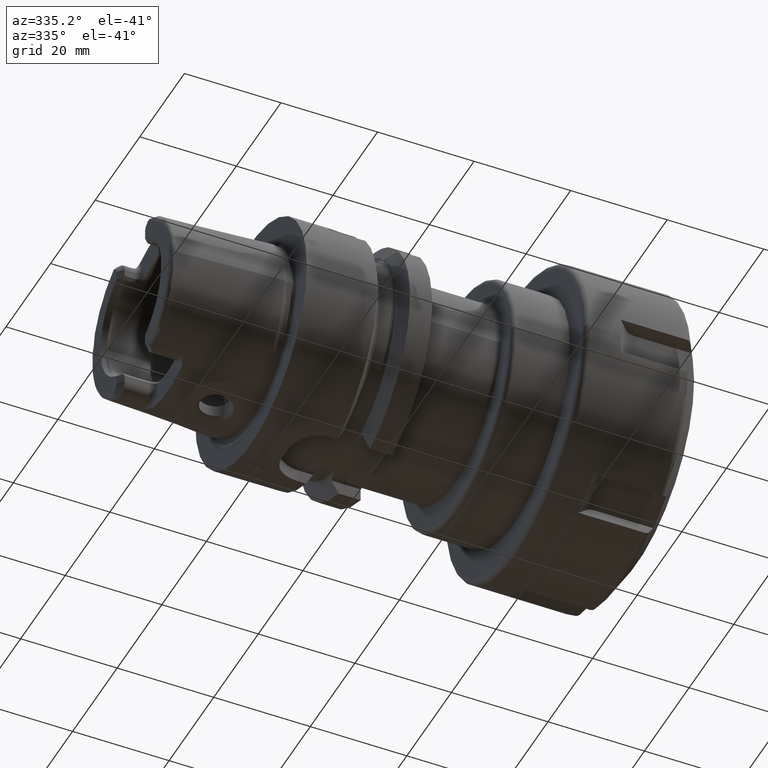
[diagram: clean part render]
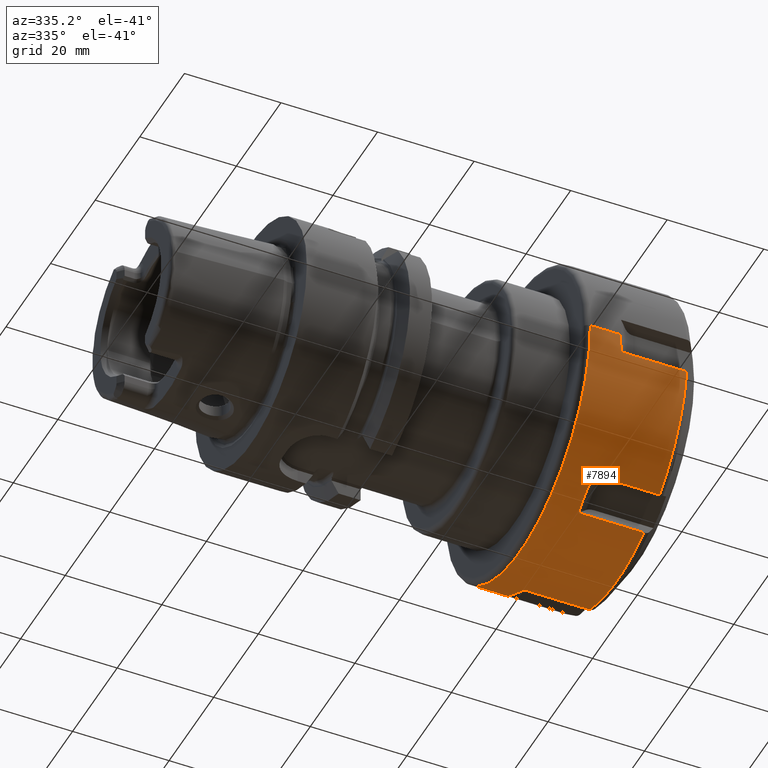
[diagram: same view with one face highlighted and labeled with its STEP entity id]
A machine part, auxiliary view. The second image highlights one B-rep face of the part: STEP entity #7894.
In plain terms, the highlighted cylindrical surface (partial cylindrical patch) has radius 31.5 mm, axis along (1, 0, 0).
Its self-contained STEP definition (entity closure, byte-faithful):
#7038=CARTESIAN_POINT('',(7.741547338395E0,1.218356437536E1,-2.904842094003E1));
#7039=CARTESIAN_POINT('',(7.404800931005E0,1.464571221600E1,-2.801574047936E1));
#7040=CARTESIAN_POINT('',(7.404800931005E0,1.693948685296E1,-2.669142907526E1));
#7041=CARTESIAN_POINT('',(7.741547338395E0,1.906488828622E1,-2.507548672772E1));
#7043=DIRECTION('',(1.E0,0.E0,0.E0));
#7044=VECTOR('',#7043,1.357266321E1);
#7045=CARTESIAN_POINT('',(7.741547338395E0,1.906488828622E1,-2.507548672772E1));
#7046=LINE('',#7045,#7044);
#7047=CARTESIAN_POINT('',(2.131421054840E1,0.E0,0.E0));
#7048=DIRECTION('',(-1.E0,0.E0,0.E0));
#7049=DIRECTION('',(0.E0,9.920143702097E-1,-1.261248956292E-1));
#7050=AXIS2_PLACEMENT_3D('',#7047,#7048,#7049);
#7052=DIRECTION('',(1.E0,0.E0,0.E0));
#7053=VECTOR('',#7052,1.357266321E1);
#7054=CARTESIAN_POINT('',(7.741547338395E0,3.124845266157E1,-3.972934212316E0));
#7055=LINE('',#7054,#7053);
#7056=CARTESIAN_POINT('',(7.5E0,0.E0,0.E0));
#7057=DIRECTION('',(1.E0,0.E0,0.E0));
#7058=DIRECTION('',(0.E0,9.996825396825E-1,-2.519563164260E-2));
#7059=AXIS2_PLACEMENT_3D('',#7056,#7057,#7058);
#7061=DIRECTION('',(-1.E0,0.E0,1.226696553146E-12));
#7062=VECTOR('',#7061,6.25E0);
#7063=CARTESIAN_POINT('',(7.5E0,3.149999999997E1,3.183525763783E-14));
#7064=LINE('',#7063,#7062);
#7065=CARTESIAN_POINT('',(1.25E0,0.E0,0.E0));
#7066=DIRECTION('',(-1.E0,0.E0,0.E0));
#7067=DIRECTION('',(0.E0,1.E0,0.E0));
#7068=AXIS2_PLACEMENT_3D('',#7065,#7066,#7067);
#7070=DIRECTION('',(-1.E0,0.E0,-1.230541309323E-12));
#7071=VECTOR('',#7070,6.25E0);
#7072=CARTESIAN_POINT('',(7.5E0,-3.149999999997E1,0.E0));
#7073=LINE('',#7072,#7071);
#7074=CARTESIAN_POINT('',(7.5E0,0.E0,0.E0));
#7075=DIRECTION('',(1.E0,0.E0,0.E0));
#7076=DIRECTION('',(0.E0,-1.E0,0.E0));
#7077=AXIS2_PLACEMENT_3D('',#7074,#7075,#7076);
#7079=DIRECTION('',(1.E0,0.E0,0.E0));
#7080=VECTOR('',#7079,1.357266321E1);
#7081=CARTESIAN_POINT('',(7.741547338395E0,-3.124845266157E1,
-3.972934212316E0));
#7082=LINE('',#7081,#7080);
#7083=CARTESIAN_POINT('',(2.131421054840E1,0.E0,0.E0));
#7084=DIRECTION('',(-1.E0,0.E0,0.E0));
#7085=DIRECTION('',(0.E0,-6.052345487694E-1,-7.960471977062E-1));
#7086=AXIS2_PLACEMENT_3D('',#7083,#7084,#7085);
#7088=DIRECTION('',(1.E0,0.E0,0.E0));
#7089=VECTOR('',#7088,1.357266321E1);
#7090=CARTESIAN_POINT('',(7.741547338395E0,-1.906488828622E1,
-2.507548672772E1));
#7091=LINE('',#7090,#7089);
#7092=CARTESIAN_POINT('',(7.741547338395E0,-1.906488828622E1,
-2.507548672772E1));
#7093=CARTESIAN_POINT('',(7.404800931005E0,-1.693948685296E1,
-2.669142907526E1));
#7094=CARTESIAN_POINT('',(7.404800931005E0,-1.464571221600E1,
-2.801574047936E1));
#7095=CARTESIAN_POINT('',(7.741547338395E0,-1.218356437536E1,
-2.904842094003E1));
#7097=DIRECTION('',(1.E0,0.E0,0.E0));
#7098=VECTOR('',#7097,1.357266321E1);
#7099=CARTESIAN_POINT('',(7.741547338395E0,-1.218356437536E1,
-2.904842094003E1));
#7100=LINE('',#7099,#7098);
#7101=CARTESIAN_POINT('',(2.131421054840E1,0.E0,0.E0));
#7102=DIRECTION('',(-1.E0,0.E0,0.E0));
#7103=DIRECTION('',(0.E0,3.867798214403E-1,-9.221720933354E-1));
#7104=AXIS2_PLACEMENT_3D('',#7101,#7102,#7103);
#7106=DIRECTION('',(1.E0,0.E0,0.E0));
#7107=VECTOR('',#7106,1.357266321E1);
#7108=CARTESIAN_POINT('',(7.741547338395E0,1.218356437536E1,-2.904842094003E1));
#7109=LINE('',#7108,#7107);
#7176=CARTESIAN_POINT('',(2.131421054840E1,-1.906488828622E1,
-2.507548672772E1));
#7196=CARTESIAN_POINT('',(2.131421054840E1,-3.124845266157E1,
-3.972934212316E0));
#7207=CARTESIAN_POINT('',(2.131421054840E1,1.906488828622E1,-2.507548672772E1));
#7209=CARTESIAN_POINT('',(2.131421054840E1,3.124845266157E1,-3.972934212316E0));
#7220=CARTESIAN_POINT('',(2.131421054840E1,1.218356437536E1,-2.904842094003E1));
#7240=CARTESIAN_POINT('',(2.131421054840E1,-1.218356437536E1,
-2.904842094003E1));
#7374=CARTESIAN_POINT('',(7.741547338395E0,-3.124845266157E1,
-3.972934212316E0));
#7375=CARTESIAN_POINT('',(7.607834703287E0,-3.138216529668E1,
-2.921239740395E0));
#7376=CARTESIAN_POINT('',(7.526914489918E0,-3.146308551005E1,
-1.861543766702E0));
#7377=CARTESIAN_POINT('',(7.5E0,-3.148999999997E1,-7.936623967406E-1));
#7495=CARTESIAN_POINT('',(7.5E0,3.148999999997E1,-7.936623967410E-1));
#7496=CARTESIAN_POINT('',(7.526914489918E0,3.146308551005E1,-1.861543766702E0));
#7497=CARTESIAN_POINT('',(7.607834703287E0,3.138216529668E1,-2.921239740395E0));
#7498=CARTESIAN_POINT('',(7.741547338395E0,3.124845266157E1,-3.972934212316E0));
#7634=CARTESIAN_POINT('',(1.25E0,3.149999999997E1,1.784644752757E-14));
#7635=CARTESIAN_POINT('',(1.25E0,-3.149999999997E1,-2.170408494488E-14));
#7636=VERTEX_POINT('',#7634);
#7637=VERTEX_POINT('',#7635);
#7644=VERTEX_POINT('',#7209);
#7645=CARTESIAN_POINT('',(7.5E0,3.149999999997E1,3.183525763783E-14));
#7646=VERTEX_POINT('',#7645);
#7647=CARTESIAN_POINT('',(7.5E0,3.148999999997E1,-7.936623967409E-1));
#7649=VERTEX_POINT('',#7647);
#7653=CARTESIAN_POINT('',(7.741547338395E0,3.124845266157E1,-3.972934212316E0));
#7654=VERTEX_POINT('',#7653);
#7662=VERTEX_POINT('',#7374);
#7663=VERTEX_POINT('',#7377);
#7699=VERTEX_POINT('',#7196);
#7701=CARTESIAN_POINT('',(7.5E0,-3.149999999997E1,0.E0));
#7702=VERTEX_POINT('',#7701);
#7712=VERTEX_POINT('',#7240);
#7713=VERTEX_POINT('',#7176);
#7714=CARTESIAN_POINT('',(7.741547338395E0,-1.218356437536E1,
-2.904842094003E1));
#7715=VERTEX_POINT('',#7714);
#7716=CARTESIAN_POINT('',(7.741547338395E0,-1.906488828622E1,
-2.507548672772E1));
#7717=VERTEX_POINT('',#7716);
#7727=VERTEX_POINT('',#7207);
#7728=VERTEX_POINT('',#7220);
#7729=CARTESIAN_POINT('',(7.741547338395E0,1.906488828622E1,-2.507548672772E1));
#7730=VERTEX_POINT('',#7729);
#7731=CARTESIAN_POINT('',(7.741547338395E0,1.218356437536E1,-2.904842094003E1));
#7732=VERTEX_POINT('',#7731);
#7854=CARTESIAN_POINT('',(-1.275E0,0.E0,0.E0));
#7855=DIRECTION('',(1.E0,0.E0,0.E0));
#7856=DIRECTION('',(0.E0,-1.E0,0.E0));
#7857=AXIS2_PLACEMENT_3D('',#7854,#7855,#7856);
#7858=CYLINDRICAL_SURFACE('',#7857,3.149999999997E1);
#7859=ORIENTED_EDGE('',*,*,#7848,.T.);
#7860=ORIENTED_EDGE('',*,*,#7801,.T.);
#7862=ORIENTED_EDGE('',*,*,#7861,.F.);
#7864=ORIENTED_EDGE('',*,*,#7863,.F.);
#7866=ORIENTED_EDGE('',*,*,#7865,.F.);
#7868=ORIENTED_EDGE('',*,*,#7867,.T.);
#7870=ORIENTED_EDGE('',*,*,#7869,.T.);
#7872=ORIENTED_EDGE('',*,*,#7871,.T.);
#7874=ORIENTED_EDGE('',*,*,#7873,.F.);
#7876=ORIENTED_EDGE('',*,*,#7875,.T.);
#7878=ORIENTED_EDGE('',*,*,#7877,.F.);
#7880=ORIENTED_EDGE('',*,*,#7879,.T.);
#7882=ORIENTED_EDGE('',*,*,#7881,.F.);
#7884=ORIENTED_EDGE('',*,*,#7883,.F.);
#7886=ORIENTED_EDGE('',*,*,#7885,.T.);
#7888=ORIENTED_EDGE('',*,*,#7887,.T.);
#7890=ORIENTED_EDGE('',*,*,#7889,.F.);
#7891=ORIENTED_EDGE('',*,*,#7831,.F.);
#7892=EDGE_LOOP('',(#7859,#7860,#7862,#7864,#7866,#7868,#7870,#7872,#7874,#7876,
#7878,#7880,#7882,#7884,#7886,#7888,#7890,#7891));
#7893=FACE_OUTER_BOUND('',#7892,.F.);
#7894=ADVANCED_FACE('',(#7893),#7858,.T.);
#7042=B_SPLINE_CURVE_WITH_KNOTS('',3,(#7038,#7039,#7040,#7041),.UNSPECIFIED.,
.F.,.F.,(4,4),(0.E0,1.E0),.UNSPECIFIED.);
#7051=CIRCLE('',#7050,3.149999999997E1);
#7060=CIRCLE('',#7059,3.149999999997E1);
#7069=CIRCLE('',#7068,3.149999999997E1);
#7078=CIRCLE('',#7077,3.149999999997E1);
#7087=CIRCLE('',#7086,3.149999999997E1);
#7096=B_SPLINE_CURVE_WITH_KNOTS('',3,(#7092,#7093,#7094,#7095),.UNSPECIFIED.,
.F.,.F.,(4,4),(0.E0,1.E0),.UNSPECIFIED.);
#7105=CIRCLE('',#7104,3.149999999997E1);
#7378=B_SPLINE_CURVE_WITH_KNOTS('',3,(#7374,#7375,#7376,#7377),.UNSPECIFIED.,
.F.,.F.,(4,4),(0.E0,1.E0),.UNSPECIFIED.);
#7499=B_SPLINE_CURVE_WITH_KNOTS('',3,(#7495,#7496,#7497,#7498),.UNSPECIFIED.,
.F.,.F.,(4,4),(0.E0,1.E0),.UNSPECIFIED.);
#7801=EDGE_CURVE('',#7730,#7727,#7046,.T.);
#7831=EDGE_CURVE('',#7732,#7728,#7109,.T.);
#7848=EDGE_CURVE('',#7732,#7730,#7042,.T.);
#7861=EDGE_CURVE('',#7644,#7727,#7051,.T.);
#7863=EDGE_CURVE('',#7654,#7644,#7055,.T.);
#7865=EDGE_CURVE('',#7649,#7654,#7499,.T.);
#7867=EDGE_CURVE('',#7649,#7646,#7060,.T.);
#7869=EDGE_CURVE('',#7646,#7636,#7064,.T.);
#7871=EDGE_CURVE('',#7636,#7637,#7069,.T.);
#7873=EDGE_CURVE('',#7702,#7637,#7073,.T.);
#7875=EDGE_CURVE('',#7702,#7663,#7078,.T.);
#7877=EDGE_CURVE('',#7662,#7663,#7378,.T.);
#7879=EDGE_CURVE('',#7662,#7699,#7082,.T.);
#7881=EDGE_CURVE('',#7713,#7699,#7087,.T.);
#7883=EDGE_CURVE('',#7717,#7713,#7091,.T.);
#7885=EDGE_CURVE('',#7717,#7715,#7096,.T.);
#7887=EDGE_CURVE('',#7715,#7712,#7100,.T.);
#7889=EDGE_CURVE('',#7728,#7712,#7105,.T.);